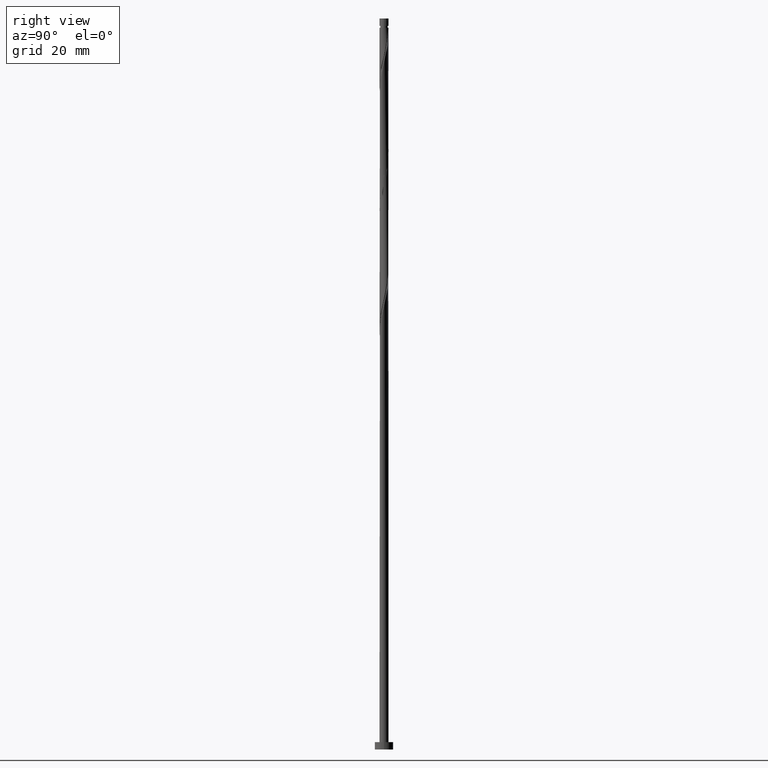
[diagram: clean part render]
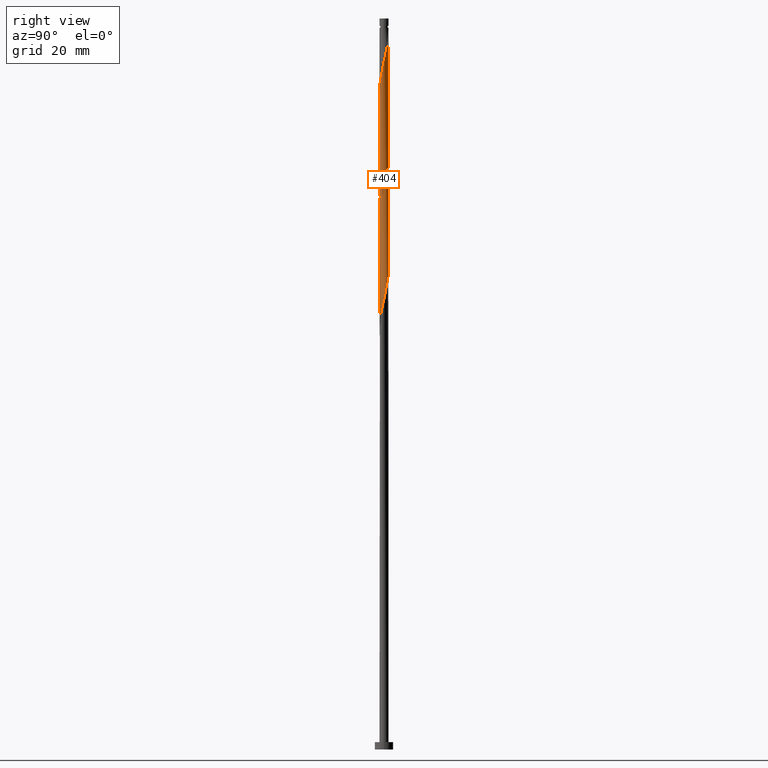
[diagram: same view with one face highlighted and labeled with its STEP entity id]
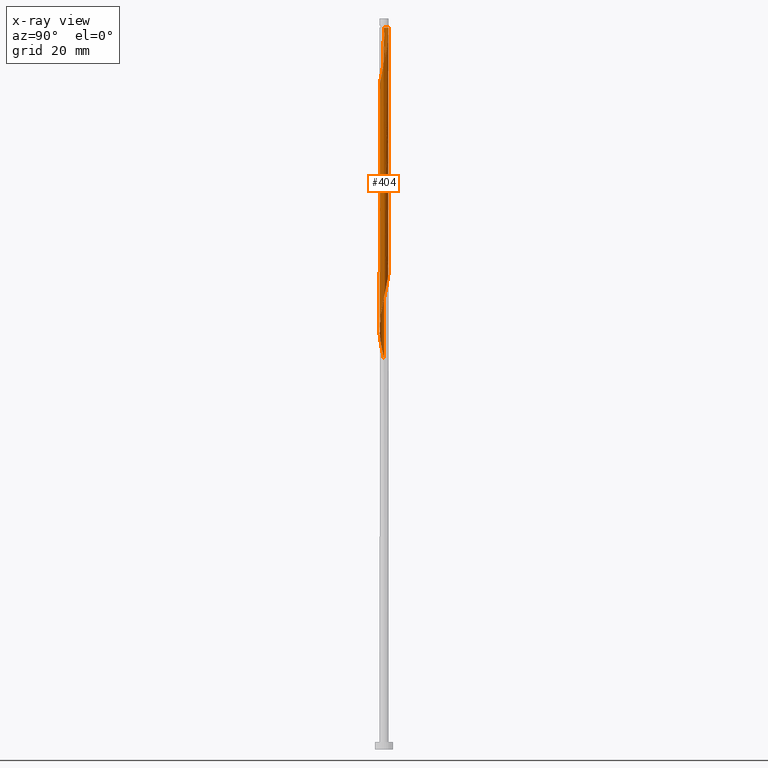
[diagram: x-ray of the same camera — body ghosted, the highlighted face saturated]
A machine part, right view. The second image highlights one B-rep face of the part: STEP entity #404.
The next image is the same camera in x-ray: the body ghosted, the highlighted face saturated — about 0% of this face is hidden behind the body in this view.
In plain terms, the highlighted cylindrical surface (bore or boss wall) has radius 1.25 mm, axis along (-0, -0, -1).
Its self-contained STEP definition (entity closure, byte-faithful):
#3 = CARTESIAN_POINT ( 'NONE',  ( 1.132978120250635490, 0.5531206224436021612, 125.9488577039078763 ) ) ;
#6 = CARTESIAN_POINT ( 'NONE',  ( -0.6903152159601424476, -1.042096397946901121, 176.6433021483523476 ) ) ;
#18 = CARTESIAN_POINT ( 'NONE',  ( -1.185254549274265212, -0.3970789007548225502, 108.5877465927968046 ) ) ;
#19 = VERTEX_POINT ( 'NONE', #124 ) ;
#20 = CARTESIAN_POINT ( 'NONE',  ( -0.07678231466697398033, -1.247639561794344987, 179.4210799261301474 ) ) ;
#22 = CARTESIAN_POINT ( 'NONE',  ( 1.250000000000000000, 1.530808498934191571E-16, 197.4766354816856904 ) ) ;
#38 = CARTESIAN_POINT ( 'NONE',  ( 0.2487468592766562125, 1.224999999999999645, 164.1433021483523760 ) ) ;
#41 = VERTEX_POINT ( 'NONE', #743 ) ;
#49 = CARTESIAN_POINT ( 'NONE',  ( 0.7046275228471895469, 1.045505570518538319, 162.0599688150190616 ) ) ;
#61 = CARTESIAN_POINT ( 'NONE',  ( -0.2410371790660427727, 1.237530978297895157, 166.2266354816856619 ) ) ;
#76 = AXIS2_PLACEMENT_3D ( 'NONE', #454, #821, #541 ) ;
#77 = VERTEX_POINT ( 'NONE', #22 ) ;
#86 = CARTESIAN_POINT ( 'NONE',  ( 1.118878712613872839, -0.5573243458342032053, 154.4210799261301190 ) ) ;
#94 = CARTESIAN_POINT ( 'NONE',  ( -0.3970789007548227723, 1.185254549274265212, 133.5877465927968331 ) ) ;
#102 = CARTESIAN_POINT ( 'NONE',  ( -1.237530978297895157, -0.2410371790660424673, 141.2266354816856904 ) ) ;
#124 = CARTESIAN_POINT ( 'NONE',  ( -1.249999999999999778, -5.233824555266891103E-17, 173.5402021368957719 ) ) ;
#130 = CARTESIAN_POINT ( 'NONE',  ( 1.132978120250635934, -0.5531206224436042707, 185.6710799261301474 ) ) ;
#138 = CARTESIAN_POINT ( 'NONE',  ( -0.9365076899976106928, -0.8279210992451775386, 175.2544132594634902 ) ) ;
#142 = CARTESIAN_POINT ( 'NONE',  ( 1.257748145290791930, -0.08747254973209654672, 123.1710799261301190 ) ) ;
#144 = CARTESIAN_POINT ( 'NONE',  ( 1.225000000000001421, 0.2487468592766559627, 189.1433021483523476 ) ) ;
#148 = CARTESIAN_POINT ( 'NONE',  ( -0.8279210992451770945, -0.9365076899976088054, 111.3655243705745903 ) ) ;
#157 = CARTESIAN_POINT ( 'NONE',  ( 0.3970789007548225502, -1.185254549274265434, 116.9210799261301474 ) ) ;
#172 = CARTESIAN_POINT ( 'NONE',  ( 0.9512146756431649752, 0.8275098094766791812, 160.6710799261301759 ) ) ;
#181 = VECTOR ( 'NONE', #469, 1000.000000000000000 ) ;
#201 = CARTESIAN_POINT ( 'NONE',  ( 0.4100211688212169747, 1.192251854709206915, 163.4488577039079757 ) ) ;
#208 = CARTESIAN_POINT ( 'NONE',  ( 1.237530978297895157, 0.2410371790660420510, 157.8933021483523476 ) ) ;
#211 = DIRECTION ( 'NONE',  ( -0.000000000000000000, -0.000000000000000000, -1.000000000000000000 ) ) ;
#226 =( BOUNDED_CURVE ( )  B_SPLINE_CURVE ( 2, ( #698, #916, #817, #1335, #86, #545, #793, #1076, #1577, #445, #573, #279, #655, #1300, #1555, #1175, #1044, #1188, #735, #1120, #1612, #1092, #332, #102, #984, #1374, #458, #349, #239, #342, #847, #452, #1113, #708, #94, #1361, #964, #1605, #473, #771, #611, #1515, #1287, #1268, #1027, #3, #383, #495, #1530, #142, #372, #504, #627, #1129, #897, #883, #1159, #641, #157, #1396, #1406, #1276, #271, #1623, #777, #1497, #148, #866, #1150, #1261, #18, #515, #1319, #1553, #663 ),
 .UNSPECIFIED., .F., .T. ) 
 B_SPLINE_CURVE_WITH_KNOTS ( ( 3, 2, 2, 2, 2, 2, 2, 2, 2, 2, 2, 2, 2, 2, 2, 2, 2, 2, 2, 2, 2, 2, 2, 2, 2, 2, 2, 2, 2, 2, 2, 2, 2, 2, 2, 2, 2, 3 ),
 ( 0.5545317669814465722, 0.5625000000000000000, 0.5729166666666666297, 0.5833333333333333703, 0.5937500000000000000, 0.6041666666666666297, 0.6145833333333333703, 0.6250000000000000000, 0.6354166666666666297, 0.6458333333333333703, 0.6562500000000000000, 0.6666666666666666297, 0.6770833333333333703, 0.6875000000000000000, 0.6979166666666666297, 0.7083333333333333703, 0.7187500000000000000, 0.7291666666666666297, 0.7395833333333333703, 0.7500000000000000000, 0.7604166666666666297, 0.7708333333333333703, 0.7812500000000000000, 0.7916666666666666297, 0.8020833333333333703, 0.8125000000000000000, 0.8229166666666666297, 0.8333333333333333703, 0.8437500000000000000, 0.8541666666666666297, 0.8645833333333333703, 0.8750000000000000000, 0.8854166666666666297, 0.8958333333333333703, 0.9062500000000000000, 0.9166666666666667407, 0.9270833333333334814, 0.9295317669814464612 ),
 .UNSPECIFIED. ) 
 CURVE ( )  GEOMETRIC_REPRESENTATION_ITEM ( )  RATIONAL_B_SPLINE_CURVE ( ( 0.9062941362546681479, 0.9031415850403727852, 0.9090909090909482515, 0.9013135103398663972, 0.9090909090909482515, 0.9013135103398663972, 0.9090909090909482515, 0.9013135103398663972, 0.9090909090909482515, 0.9013135103398663972, 0.9090909090909482515, 0.9013135103398663972, 0.9090909090909482515, 0.9013135103398663972, 0.9090909090909482515, 0.9013135103398663972, 0.9090909090909482515, 0.9013135103398663972, 0.9090909090909482515, 0.9013135103398663972, 0.9090909090909482515, 0.9013135103398663972, 0.9090909090909482515, 0.9013135103398663972, 0.9090909090909482515, 0.9013135103398663972, 0.9090909090909482515, 0.9013135103398663972, 0.9090909090909482515, 0.9013135103398663972, 0.9090909090909482515, 0.9013135103398663972, 0.9090909090909482515, 0.9013135103398663972, 0.9090909090909482515, 0.9013135103398663972, 0.9090909090909482515, 0.9013135103398663972, 0.9090909090909482515, 0.9013135103398663972, 0.9090909090909482515, 0.9013135103398663972, 0.9090909090909482515, 0.9013135103398663972, 0.9090909090909482515, 0.9013135103398663972, 0.9090909090909482515, 0.9013135103398663972, 0.9090909090909482515, 0.9013135103398663972, 0.9090909090909482515, 0.9013135103398663972, 0.9090909090909482515, 0.9013135103398663972, 0.9090909090909482515, 0.9013135103398663972, 0.9090909090909482515, 0.9013135103398663972, 0.9090909090909482515, 0.9013135103398663972, 0.9090909090909482515, 0.9013135103398663972, 0.9090909090909482515, 0.9013135103398663972, 0.9090909090909482515, 0.9013135103398663972, 0.9090909090909482515, 0.9013135103398663972, 0.9090909090909482515, 0.9013135103398663972, 0.9090909090909482515, 0.9013135103398663972, 0.9090909090909482515, 0.9072628343904417525, 0.9062941362546682589 ) ) 
 REPRESENTATION_ITEM ( '' )  );
#237 = CARTESIAN_POINT ( 'NONE',  ( -0.2410371790660434943, -1.237530978297896489, 178.7266354816856904 ) ) ;
#239 = CARTESIAN_POINT ( 'NONE',  ( -1.118878712613873283, 0.5573243458342024281, 137.7544132594634618 ) ) ;
#241 = EDGE_CURVE ( 'NONE', #41, #366, #1202, .T. ) ;
#250 = CARTESIAN_POINT ( 'NONE',  ( 0.2487468592766560183, -1.225000000000001421, 180.8099688150190332 ) ) ;
#263 = CARTESIAN_POINT ( 'NONE',  ( -0.8275098094766810686, -0.9512146756431655303, 175.9488577039078905 ) ) ;
#271 = CARTESIAN_POINT ( 'NONE',  ( -0.2487468592766560738, -1.224999999999999645, 114.1433021483523618 ) ) ;
#279 = CARTESIAN_POINT ( 'NONE',  ( 0.2410371790660420788, -1.237530978297895601, 149.5599688150190048 ) ) ;
#286 = CARTESIAN_POINT ( 'NONE',  ( -0.6903152159601412263, 1.042096397946899788, 168.3099688150190332 ) ) ;
#307 = VECTOR ( 'NONE', #211, 1000.000000000000000 ) ;
#316 = CARTESIAN_POINT ( 'NONE',  ( 0.8279210992451772055, 0.9365076899976086944, 161.3655243705745477 ) ) ;
#326 = CARTESIAN_POINT ( 'NONE',  ( -1.225000000000001421, -0.2487468592766561293, 172.4766354816857472 ) ) ;
#332 = CARTESIAN_POINT ( 'NONE',  ( -1.185254549274265212, -0.3970789007548225502, 141.9210799261301759 ) ) ;
#342 = CARTESIAN_POINT ( 'NONE',  ( -1.045505570518538985, 0.7046275228471891028, 137.0599688150190332 ) ) ;
#349 = CARTESIAN_POINT ( 'NONE',  ( -1.192251854709207359, 0.4100211688212159200, 138.4488577039079189 ) ) ;
#354 = CIRCLE ( 'NONE', #1288, 1.249999999999987788 ) ;
#360 = CARTESIAN_POINT ( 'NONE',  ( -0.3970789007548241600, -1.185254549274266322, 178.0321910372412901 ) ) ;
#366 = VERTEX_POINT ( 'NONE', #681 ) ;
#367 = DIRECTION ( 'NONE',  ( -0.000000000000000000, -0.000000000000000000, -1.000000000000000000 ) ) ;
#372 = CARTESIAN_POINT ( 'NONE',  ( 1.224999999999999645, -0.2487468592766561570, 122.4766354816857046 ) ) ;
#383 = CARTESIAN_POINT ( 'NONE',  ( 1.185254549274265434, 0.3970789007548219396, 125.2544132594634334 ) ) ;
#386 = CARTESIAN_POINT ( 'NONE',  ( 1.247639561794344987, -0.07678231466697460483, 187.7544132594634618 ) ) ;
#404 = ADVANCED_FACE ( 'NONE', ( #569 ), #1181, .T. ) ;
#406 = CARTESIAN_POINT ( 'NONE',  ( -1.249999999999999334, 0.1256297269074038436, 173.0067757677065003 ) ) ;
#408 = VERTEX_POINT ( 'NONE', #1338 ) ;
#414 = CARTESIAN_POINT ( 'NONE',  ( 1.250000000000000222, 0.03842743957208626798, 157.0366991582572211 ) ) ;
#436 = CARTESIAN_POINT ( 'NONE',  ( 1.132978120250635490, 0.5531206224436021612, 159.2821910372412333 ) ) ;
#443 = ORIENTED_EDGE ( 'NONE', *, *, #920, .F. ) ;
#445 = CARTESIAN_POINT ( 'NONE',  ( 0.5531206224436026053, -1.132978120250635490, 150.9488577039079189 ) ) ;
#452 = CARTESIAN_POINT ( 'NONE',  ( -0.8275098094766792922, 0.9512146756431645311, 135.6710799261301474 ) ) ;
#454 = CARTESIAN_POINT ( 'NONE',  ( 0.000000000000000000, 0.000000000000000000, 200.0000000000000000 ) ) ;
#458 = CARTESIAN_POINT ( 'NONE',  ( -1.224999999999999645, 0.2487468592766559627, 139.1433021483523191 ) ) ;
#469 = DIRECTION ( 'NONE',  ( -0.000000000000000000, -0.000000000000000000, -1.000000000000000000 ) ) ;
#473 = CARTESIAN_POINT ( 'NONE',  ( 0.2487468592766562125, 1.224999999999999645, 130.8099688150190332 ) ) ;
#491 = CARTESIAN_POINT ( 'NONE',  ( 1.192251854709209358, 0.4100211688212159200, 189.8377465927967478 ) ) ;
#495 = CARTESIAN_POINT ( 'NONE',  ( 1.237530978297895157, 0.2410371790660420510, 124.5599688150190474 ) ) ;
#499 = CARTESIAN_POINT ( 'NONE',  ( 1.185254549274266322, -0.3970789007548242155, 186.3655243705746045 ) ) ;
#504 = CARTESIAN_POINT ( 'NONE',  ( 1.192251854709206915, -0.4100211688212168082, 121.7821910372412759 ) ) ;
#515 = CARTESIAN_POINT ( 'NONE',  ( -1.237530978297895157, -0.2410371790660424673, 107.8933021483523618 ) ) ;
#538 = CARTESIAN_POINT ( 'NONE',  ( 0.08747254973209608875, 1.257748145290791930, 164.8377465927967762 ) ) ;
#541 = DIRECTION ( 'NONE',  ( -1.000000000000000000, 0.000000000000000000, 0.000000000000000000 ) ) ;
#545 = CARTESIAN_POINT ( 'NONE',  ( 1.045505570518538319, -0.7046275228471894359, 153.7266354816857472 ) ) ;
#554 = CARTESIAN_POINT ( 'NONE',  ( 1.042096397946900010, 0.6903152159601408933, 159.9766354816856619 ) ) ;
#563 = ORIENTED_EDGE ( 'NONE', *, *, #700, .T. ) ;
#567 = CARTESIAN_POINT ( 'NONE',  ( 1.247639561794343432, 0.07678231466697274521, 157.1988577039078621 ) ) ;
#569 = FACE_OUTER_BOUND ( 'NONE', #820, .T. ) ;
#573 = CARTESIAN_POINT ( 'NONE',  ( 0.3970789007548225502, -1.185254549274265434, 150.2544132594634334 ) ) ;
#611 = CARTESIAN_POINT ( 'NONE',  ( 0.5573243458342032053, 1.118878712613872839, 129.4210799261301474 ) ) ;
#614 = CARTESIAN_POINT ( 'NONE',  ( 0.9365076899976111369, 0.8279210992451770945, 191.9210799261301759 ) ) ;
#621 = CARTESIAN_POINT ( 'NONE',  ( 0.4100211688212159755, -1.192251854709209358, 181.5044132594634618 ) ) ;
#627 = CARTESIAN_POINT ( 'NONE',  ( 1.118878712613872839, -0.5573243458342032053, 121.0877465927967762 ) ) ;
#630 = CARTESIAN_POINT ( 'NONE',  ( 0.8279210992451775386, -0.9365076899976109148, 183.5877465927968046 ) ) ;
#634 = CARTESIAN_POINT ( 'NONE',  ( 0.6903152159601425586, 1.042096397946900899, 193.3099688150190332 ) ) ;
#641 = CARTESIAN_POINT ( 'NONE',  ( 0.5531206224436026053, -1.132978120250635490, 117.6155243705745619 ) ) ;
#655 = CARTESIAN_POINT ( 'NONE',  ( 0.07678231466697280072, -1.247639561794343432, 148.8655243705745761 ) ) ;
#663 = CARTESIAN_POINT ( 'NONE',  ( -1.249999999999999556, -1.379486614923916019E-15, 106.8735354702290863 ) ) ;
#665 = CARTESIAN_POINT ( 'NONE',  ( -1.118878712613873283, 0.5573243458342024281, 171.0877465927968046 ) ) ;
#676 = CARTESIAN_POINT ( 'NONE',  ( -0.9365076899976089164, 0.8279210992451766504, 169.6988577039079189 ) ) ;
#681 = CARTESIAN_POINT ( 'NONE',  ( -1.249999999999999556, -1.379486614923916216E-15, 106.8735354702290863 ) ) ;
#698 = CARTESIAN_POINT ( 'NONE',  ( 1.249999999999999556, 1.039288018831568547E-15, 156.8735354702290579 ) ) ;
#700 = EDGE_CURVE ( 'NONE', #77, #1518, #1377, .T. ) ;
#708 = CARTESIAN_POINT ( 'NONE',  ( -0.5531206224436029384, 1.132978120250635268, 134.2821910372412333 ) ) ;
#733 = CARTESIAN_POINT ( 'NONE',  ( 0.08747254973209554751, -1.257748145290793484, 180.1155243705745477 ) ) ;
#735 = CARTESIAN_POINT ( 'NONE',  ( -0.8279210992451770945, -0.9365076899976088054, 144.6988577039079189 ) ) ;
#743 = CARTESIAN_POINT ( 'NONE',  ( -1.250000000000001110, 6.168436082993083050E-16, 171.4130688264756088 ) ) ;
#749 = CARTESIAN_POINT ( 'NONE',  ( -0.08747254973210001616, 1.257748145290793929, 196.7821910372412333 ) ) ;
#757 = CARTESIAN_POINT ( 'NONE',  ( -0.2487468592766899356, 1.225000000000340927, 197.4766354816856904 ) ) ;
#771 = CARTESIAN_POINT ( 'NONE',  ( 0.4100211688212169747, 1.192251854709206915, 130.1155243705745761 ) ) ;
#777 = CARTESIAN_POINT ( 'NONE',  ( -0.5573243458342026502, -1.118878712613873283, 112.7544132594634618 ) ) ;
#785 = CARTESIAN_POINT ( 'NONE',  ( 0.5573243458342032053, 1.118878712613872839, 162.7544132594634618 ) ) ;
#793 = CARTESIAN_POINT ( 'NONE',  ( 0.9365076899976088054, -0.8279210992451772055, 153.0321910372412901 ) ) ;
#817 = CARTESIAN_POINT ( 'NONE',  ( 1.224999999999999645, -0.2487468592766561570, 155.8099688150189763 ) ) ;
#820 = EDGE_LOOP ( 'NONE', ( #1225, #1180, #1007, #953, #443, #1558, #563, #1476 ) ) ;
#821 = DIRECTION ( 'NONE',  ( -0.000000000000000000, -0.000000000000000000, -1.000000000000000000 ) ) ;
#827 = CARTESIAN_POINT ( 'NONE',  ( -1.249999999999999778, -5.233824555266891103E-17, 173.5402021368957719 ) ) ;
#832 = CARTESIAN_POINT ( 'NONE',  ( -1.250000000000001110, 6.168436082993083050E-16, 171.4130688264756088 ) ) ;
#838 = CARTESIAN_POINT ( 'NONE',  ( -1.192251854709209358, -0.4100211688212160310, 173.1710799261300906 ) ) ;
#847 = CARTESIAN_POINT ( 'NONE',  ( -0.9365076899976089164, 0.8279210992451766504, 136.3655243705746045 ) ) ;
#864 = CARTESIAN_POINT ( 'NONE',  ( 1.042096397946900677, -0.6903152159601426696, 184.9766354816856904 ) ) ;
#866 = CARTESIAN_POINT ( 'NONE',  ( -0.9512146756431648642, -0.8275098094766792922, 110.6710799261301332 ) ) ;
#871 = DIRECTION ( 'NONE',  ( -1.000000000000000000, 0.000000000000000000, 0.000000000000000000 ) ) ;
#872 = EDGE_CURVE ( 'NONE', #19, #1518, #956, .T. ) ;
#883 = CARTESIAN_POINT ( 'NONE',  ( 0.8275098094766791812, -0.9512146756431648642, 119.0044132594634618 ) ) ;
#887 = CARTESIAN_POINT ( 'NONE',  ( 0.5531206224436043817, 1.132978120250635934, 194.0044132594634902 ) ) ;
#897 = CARTESIAN_POINT ( 'NONE',  ( 0.9365076899976088054, -0.8279210992451772055, 119.6988577039079189 ) ) ;
#916 = CARTESIAN_POINT ( 'NONE',  ( 1.249999999999999112, -0.1256297269074068412, 156.3401091010398147 ) ) ;
#920 = EDGE_CURVE ( 'NONE', #1518, #366, #226, .T. ) ;
#927 = CARTESIAN_POINT ( 'NONE',  ( -0.5531206224436029384, 1.132978120250635268, 167.6155243705745761 ) ) ;
#938 = CARTESIAN_POINT ( 'NONE',  ( 1.249999999999999556, 1.039288018831568547E-15, 156.8735354702290579 ) ) ;
#953 = ORIENTED_EDGE ( 'NONE', *, *, #241, .T. ) ;
#956 =( BOUNDED_CURVE ( )  B_SPLINE_CURVE ( 2, ( #827, #406, #1220, #1340, #665, #1538, #676, #1415, #286, #927, #1064, #61, #1432, #538, #38, #201, #785, #49, #316, #172, #554, #436, #1309, #208, #567, #414, #938 ),
 .UNSPECIFIED., .F., .T. ) 
 B_SPLINE_CURVE_WITH_KNOTS ( ( 3, 2, 2, 2, 2, 2, 2, 2, 2, 2, 2, 2, 2, 3 ),
 ( 0.4295317669814463502, 0.4375000000000000000, 0.4479166666666666852, 0.4583333333333333148, 0.4687500000000000000, 0.4791666666666666852, 0.4895833333333333148, 0.5000000000000000000, 0.5104166666666666297, 0.5208333333333333703, 0.5312500000000000000, 0.5416666666666666297, 0.5520833333333333703, 0.5545317669814465722 ),
 .UNSPECIFIED. ) 
 CURVE ( )  GEOMETRIC_REPRESENTATION_ITEM ( )  RATIONAL_B_SPLINE_CURVE ( ( 0.9062941362546685919, 0.9031415850403727852, 0.9090909090909482515, 0.9013135103398663972, 0.9090909090909482515, 0.9013135103398663972, 0.9090909090909482515, 0.9013135103398663972, 0.9090909090909482515, 0.9013135103398663972, 0.9090909090909482515, 0.9013135103398663972, 0.9090909090909482515, 0.9013135103398663972, 0.9090909090909482515, 0.9013135103398663972, 0.9090909090909482515, 0.9013135103398663972, 0.9090909090909482515, 0.9013135103398663972, 0.9090909090909482515, 0.9013135103398663972, 0.9090909090909482515, 0.9013135103398663972, 0.9090909090909482515, 0.9072628343904416415, 0.9062941362546681479 ) ) 
 REPRESENTATION_ITEM ( '' )  );
#964 = CARTESIAN_POINT ( 'NONE',  ( -0.07678231466697328644, 1.247639561794343432, 132.1988577039079473 ) ) ;
#984 = CARTESIAN_POINT ( 'NONE',  ( -1.247639561794343432, -0.07678231466697318930, 140.5321910372412333 ) ) ;
#999 = CARTESIAN_POINT ( 'NONE',  ( 1.045505570518540983, 0.7046275228471888807, 191.2266354816856051 ) ) ;
#1007 = ORIENTED_EDGE ( 'NONE', *, *, #1462, .F. ) ;
#1008 = CARTESIAN_POINT ( 'NONE',  ( -0.5531206224436042707, -1.132978120250636156, 177.3377465927968046 ) ) ;
#1015 = CARTESIAN_POINT ( 'NONE',  ( 1.237530978297896489, -0.2410371790660440217, 187.0599688150190048 ) ) ;
#1027 = CARTESIAN_POINT ( 'NONE',  ( 1.042096397946900010, 0.6903152159601408933, 126.6433021483523476 ) ) ;
#1044 = CARTESIAN_POINT ( 'NONE',  ( -0.5573243458342026502, -1.118878712613873283, 146.0877465927967762 ) ) ;
#1064 = CARTESIAN_POINT ( 'NONE',  ( -0.3970789007548227723, 1.185254549274265212, 166.9210799261301190 ) ) ;
#1076 = CARTESIAN_POINT ( 'NONE',  ( 0.8275098094766791812, -0.9512146756431648642, 152.3377465927967762 ) ) ;
#1092 = CARTESIAN_POINT ( 'NONE',  ( -1.132978120250635490, -0.5531206224436026053, 142.6155243705746329 ) ) ;
#1095 = CARTESIAN_POINT ( 'NONE',  ( 1.250000000000000000, 1.530808498934191571E-16, 200.0000000000000000 ) ) ;
#1113 = CARTESIAN_POINT ( 'NONE',  ( -0.6903152159601412263, 1.042096397946899788, 134.9766354816856619 ) ) ;
#1117 = LINE ( 'NONE', #1364, #1567 ) ;
#1120 = CARTESIAN_POINT ( 'NONE',  ( -0.9512146756431648642, -0.8275098094766792922, 144.0044132594634334 ) ) ;
#1129 = CARTESIAN_POINT ( 'NONE',  ( 1.045505570518538319, -0.7046275228471894359, 120.3933021483523476 ) ) ;
#1134 = CARTESIAN_POINT ( 'NONE',  ( 0.8275098094766816237, 0.9512146756431649752, 192.6155243705745477 ) ) ;
#1140 = CARTESIAN_POINT ( 'NONE',  ( 1.118878712613875059, 0.5573243458342025392, 190.5321910372412901 ) ) ;
#1146 = CARTESIAN_POINT ( 'NONE',  ( 0.9512146756431655303, -0.8275098094766810686, 184.2821910372412333 ) ) ;
#1150 = CARTESIAN_POINT ( 'NONE',  ( -1.042096397946899788, -0.6903152159601410043, 109.9766354816856904 ) ) ;
#1159 = CARTESIAN_POINT ( 'NONE',  ( 0.6903152159601405602, -1.042096397946900233, 118.3099688150190190 ) ) ;
#1175 = CARTESIAN_POINT ( 'NONE',  ( -0.4100211688212163086, -1.192251854709207359, 146.7821910372412617 ) ) ;
#1180 = ORIENTED_EDGE ( 'NONE', *, *, #1464, .T. ) ;
#1181 = CYLINDRICAL_SURFACE ( 'NONE', #76, 1.250000000000000000 ) ;
#1188 = CARTESIAN_POINT ( 'NONE',  ( -0.7046275228471891028, -1.045505570518538985, 145.3933021483522907 ) ) ;
#1202 = LINE ( 'NONE', #1449, #307 ) ;
#1220 = CARTESIAN_POINT ( 'NONE',  ( -1.224999999999999645, 0.2487468592766559627, 172.4766354816856904 ) ) ;
#1225 = ORIENTED_EDGE ( 'NONE', *, *, #1395, .F. ) ;
#1261 = CARTESIAN_POINT ( 'NONE',  ( -1.132978120250635490, -0.5531206224436026053, 109.2821910372412475 ) ) ;
#1265 = CARTESIAN_POINT ( 'NONE',  ( 1.249999999999999556, 1.039288018831568350E-15, 156.8735354702290579 ) ) ;
#1268 = CARTESIAN_POINT ( 'NONE',  ( 0.9512146756431649752, 0.8275098094766791812, 127.3377465927968473 ) ) ;
#1276 = CARTESIAN_POINT ( 'NONE',  ( -0.08747254973209647733, -1.257748145290791930, 114.8377465927968046 ) ) ;
#1279 = CARTESIAN_POINT ( 'NONE',  ( -1.118878712613874837, -0.5573243458342028722, 173.8655243705746045 ) ) ;
#1287 = CARTESIAN_POINT ( 'NONE',  ( 0.8279210992451772055, 0.9365076899976086944, 128.0321910372412333 ) ) ;
#1288 = AXIS2_PLACEMENT_3D ( 'NONE', #1378, #367, #871 ) ;
#1300 = CARTESIAN_POINT ( 'NONE',  ( -0.08747254973209647733, -1.257748145290791930, 148.1710799261301474 ) ) ;
#1309 = CARTESIAN_POINT ( 'NONE',  ( 1.185254549274265434, 0.3970789007548219396, 158.5877465927968331 ) ) ;
#1319 = CARTESIAN_POINT ( 'NONE',  ( -1.247639561794343432, -0.07678231466697318930, 107.1988577039079331 ) ) ;
#1335 = CARTESIAN_POINT ( 'NONE',  ( 1.192251854709206915, -0.4100211688212168082, 155.1155243705746045 ) ) ;
#1338 = CARTESIAN_POINT ( 'NONE',  ( -0.2487468592766899356, 1.225000000000340927, 197.4766354816856904 ) ) ;
#1339 = DIRECTION ( 'NONE',  ( -0.000000000000000000, -0.000000000000000000, -1.000000000000000000 ) ) ;
#1340 = CARTESIAN_POINT ( 'NONE',  ( -1.192251854709207359, 0.4100211688212159200, 171.7821910372412333 ) ) ;
#1361 = CARTESIAN_POINT ( 'NONE',  ( -0.2410371790660427727, 1.237530978297895157, 132.8933021483523476 ) ) ;
#1364 = CARTESIAN_POINT ( 'NONE',  ( -1.250000000000000000, 0.000000000000000000, 200.0000000000000000 ) ) ;
#1365 =( BOUNDED_CURVE ( )  B_SPLINE_CURVE ( 2, ( #832, #1589, #326, #838, #1279, #1618, #138, #263, #6, #1008, #360, #237, #20, #733, #250, #621, #1627, #1385, #630, #1146, #864, #130, #499, #1015, #386, #1519, #144, #491, #1140, #999, #614, #1134, #634, #887, #1508, #1398, #1502, #749, #757 ),
 .UNSPECIFIED., .F., .T. ) 
 B_SPLINE_CURVE_WITH_KNOTS ( ( 3, 2, 2, 2, 2, 2, 2, 2, 2, 2, 2, 2, 2, 2, 2, 2, 2, 2, 2, 3 ),
 ( 0.5545317669814461281, 0.5625000000000000000, 0.5729166666666667407, 0.5833333333333332593, 0.5937500000000001110, 0.6041666666666668517, 0.6145833333333333703, 0.6250000000000001110, 0.6354166666666668517, 0.6458333333333333703, 0.6562500000000002220, 0.6666666666666669627, 0.6770833333333334814, 0.6875000000000002220, 0.6979166666666669627, 0.7083333333333334814, 0.7187500000000002220, 0.7291666666666669627, 0.7395833333333335924, 0.7500000000000003331 ),
 .UNSPECIFIED. ) 
 CURVE ( )  GEOMETRIC_REPRESENTATION_ITEM ( )  RATIONAL_B_SPLINE_CURVE ( ( 0.9062941362546742541, 0.9031415850403782253, 0.9090909090909538026, 0.9013135103398720593, 0.9090909090909538026, 0.9013135103398720593, 0.9090909090909538026, 0.9013135103398720593, 0.9090909090909538026, 0.9013135103398720593, 0.9090909090909538026, 0.9013135103398720593, 0.9090909090909538026, 0.9013135103398720593, 0.9090909090909538026, 0.9013135103398720593, 0.9090909090909538026, 0.9013135103398720593, 0.9090909090909538026, 0.9013135103398720593, 0.9090909090909538026, 0.9013135103398720593, 0.9090909090909538026, 0.9013135103398720593, 0.9090909090909538026, 0.9013135103398720593, 0.9090909090909538026, 0.9013135103398720593, 0.9090909090909538026, 0.9013135103398720593, 0.9090909090909538026, 0.9013135103398720593, 0.9090909090909538026, 0.9013135103398720593, 0.9090909090909538026, 0.9013135103398720593, 0.9090909090909538026, 0.9013135103398718373, 0.9090909090909540247 ) ) 
 REPRESENTATION_ITEM ( '' )  );
#1374 = CARTESIAN_POINT ( 'NONE',  ( -1.257748145290791930, 0.08747254973209636630, 139.8377465927967478 ) ) ;
#1377 = LINE ( 'NONE', #1095, #181 ) ;
#1378 = CARTESIAN_POINT ( 'NONE',  ( 0.000000000000000000, 0.000000000000000000, 197.4766354816856904 ) ) ;
#1385 = CARTESIAN_POINT ( 'NONE',  ( 0.7046275228471889918, -1.045505570518540539, 182.8933021483523476 ) ) ;
#1395 = EDGE_CURVE ( 'NONE', #1453, #19, #1117, .T. ) ;
#1396 = CARTESIAN_POINT ( 'NONE',  ( 0.2410371790660420788, -1.237530978297895601, 116.2266354816856762 ) ) ;
#1398 = CARTESIAN_POINT ( 'NONE',  ( 0.2410371790660440772, 1.237530978297896489, 195.3933021483523760 ) ) ;
#1406 = CARTESIAN_POINT ( 'NONE',  ( 0.07678231466697280072, -1.247639561794343432, 115.5321910372412475 ) ) ;
#1415 = CARTESIAN_POINT ( 'NONE',  ( -0.8275098094766792922, 0.9512146756431645311, 169.0044132594634050 ) ) ;
#1432 = CARTESIAN_POINT ( 'NONE',  ( -0.07678231466697328644, 1.247639561794343432, 165.5321910372412617 ) ) ;
#1449 = CARTESIAN_POINT ( 'NONE',  ( -1.250000000000000000, 0.000000000000000000, 200.0000000000000000 ) ) ;
#1453 = VERTEX_POINT ( 'NONE', #1581 ) ;
#1462 = EDGE_CURVE ( 'NONE', #41, #408, #1365, .T. ) ;
#1464 = EDGE_CURVE ( 'NONE', #1453, #408, #354, .T. ) ;
#1476 = ORIENTED_EDGE ( 'NONE', *, *, #872, .F. ) ;
#1497 = CARTESIAN_POINT ( 'NONE',  ( -0.7046275228471891028, -1.045505570518538985, 112.0599688150190190 ) ) ;
#1502 = CARTESIAN_POINT ( 'NONE',  ( 0.07678231466697464647, 1.247639561794344987, 196.0877465927968331 ) ) ;
#1508 = CARTESIAN_POINT ( 'NONE',  ( 0.3970789007548242155, 1.185254549274266322, 194.6988577039079189 ) ) ;
#1515 = CARTESIAN_POINT ( 'NONE',  ( 0.7046275228471895469, 1.045505570518538319, 128.7266354816856619 ) ) ;
#1518 = VERTEX_POINT ( 'NONE', #1265 ) ;
#1519 = CARTESIAN_POINT ( 'NONE',  ( 1.257748145290793484, 0.08747254973209488138, 188.4488577039079189 ) ) ;
#1530 = CARTESIAN_POINT ( 'NONE',  ( 1.247639561794343432, 0.07678231466697274521, 123.8655243705745761 ) ) ;
#1538 = CARTESIAN_POINT ( 'NONE',  ( -1.045505570518538985, 0.7046275228471891028, 170.3933021483523476 ) ) ;
#1553 = CARTESIAN_POINT ( 'NONE',  ( -1.250000000000000000, -0.03842743957208839822, 107.0366991582572211 ) ) ;
#1555 = CARTESIAN_POINT ( 'NONE',  ( -0.2487468592766560738, -1.224999999999999645, 147.4766354816857188 ) ) ;
#1558 = ORIENTED_EDGE ( 'NONE', *, *, #700, .F. ) ;
#1567 = VECTOR ( 'NONE', #1339, 1000.000000000000000 ) ;
#1577 = CARTESIAN_POINT ( 'NONE',  ( 0.6903152159601405602, -1.042096397946900233, 151.6433021483523191 ) ) ;
#1581 = CARTESIAN_POINT ( 'NONE',  ( -1.249999999999987788, 0.000000000000000000, 197.4766354816856904 ) ) ;
#1589 = CARTESIAN_POINT ( 'NONE',  ( -1.250000000000001998, -0.1256297269074007072, 171.9464951956649088 ) ) ;
#1605 = CARTESIAN_POINT ( 'NONE',  ( 0.08747254973209608875, 1.257748145290791930, 131.5044132594634902 ) ) ;
#1612 = CARTESIAN_POINT ( 'NONE',  ( -1.042096397946899788, -0.6903152159601410043, 143.3099688150190332 ) ) ;
#1618 = CARTESIAN_POINT ( 'NONE',  ( -1.045505570518540539, -0.7046275228471895469, 174.5599688150190048 ) ) ;
#1623 = CARTESIAN_POINT ( 'NONE',  ( -0.4100211688212163086, -1.192251854709207359, 113.4488577039079047 ) ) ;
#1627 = CARTESIAN_POINT ( 'NONE',  ( 0.5573243458342025392, -1.118878712613875059, 182.1988577039078905 ) ) ;